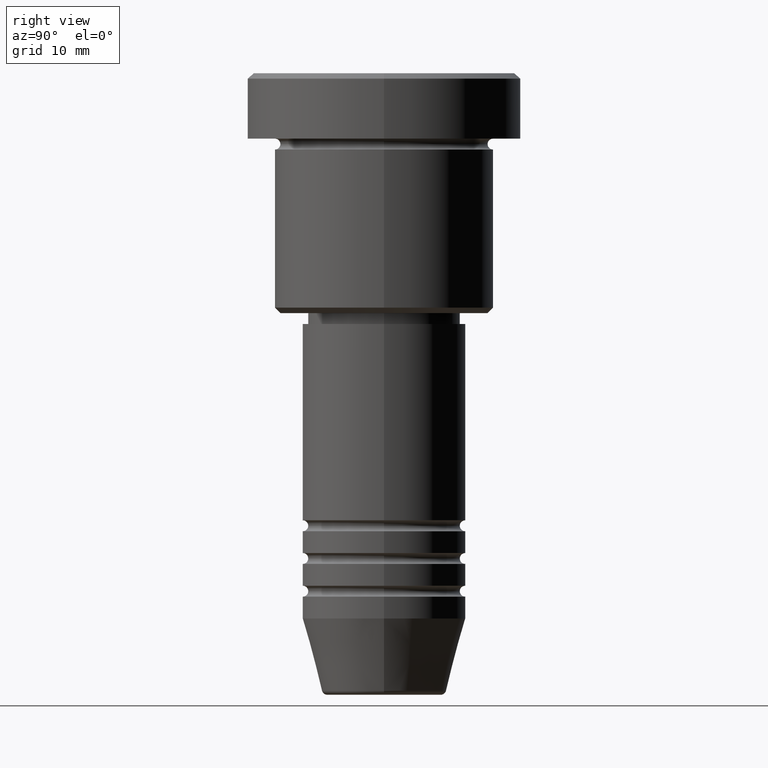
[diagram: clean part render]
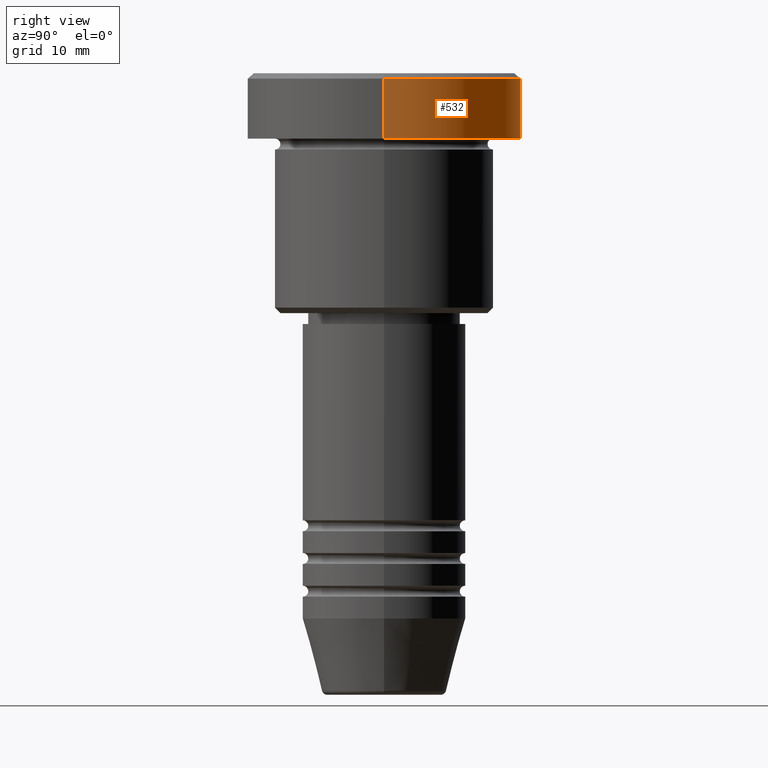
[diagram: same view with one face highlighted and labeled with its STEP entity id]
A machine part, right view. The second image highlights one B-rep face of the part: STEP entity #532.
In plain terms, the highlighted cylindrical surface (partial cylindrical patch) has radius 12.5 mm, axis along (-0, -0, 1).
Its self-contained STEP definition (entity closure, byte-faithful):
#17 = ORIENTED_EDGE ( 'NONE', *, *, #357, .F. ) ;
#64 = FACE_OUTER_BOUND ( 'NONE', #980, .T. ) ;
#92 = DIRECTION ( 'NONE',  ( 1.000000000000000000, 0.000000000000000000, 0.000000000000000000 ) ) ;
#96 = ORIENTED_EDGE ( 'NONE', *, *, #454, .T. ) ;
#128 = CARTESIAN_POINT ( 'NONE',  ( 0.000000000000000000, 0.000000000000000000, 0.000000000000000000 ) ) ;
#135 = DIRECTION ( 'NONE',  ( 1.000000000000000000, 0.000000000000000000, 0.000000000000000000 ) ) ;
#145 = CIRCLE ( 'NONE', #465, 12.50000000000000000 ) ;
#152 = VERTEX_POINT ( 'NONE', #291 ) ;
#206 = AXIS2_PLACEMENT_3D ( 'NONE', #955, #759, #135 ) ;
#291 = CARTESIAN_POINT ( 'NONE',  ( 12.50000000000000000, 0.000000000000000000, -5.999999999999996447 ) ) ;
#303 = CARTESIAN_POINT ( 'NONE',  ( -12.50000000000000000, 1.530808498934191521E-15, -5.999999999999996447 ) ) ;
#336 = CARTESIAN_POINT ( 'NONE',  ( 12.50000000000000000, 0.000000000000000000, 0.000000000000000000 ) ) ;
#357 = EDGE_CURVE ( 'NONE', #152, #821, #1089, .T. ) ;
#402 = DIRECTION ( 'NONE',  ( -0.000000000000000000, -0.000000000000000000, 1.000000000000000000 ) ) ;
#454 = EDGE_CURVE ( 'NONE', #541, #671, #1070, .T. ) ;
#465 = AXIS2_PLACEMENT_3D ( 'NONE', #1098, #568, #92 ) ;
#475 = DIRECTION ( 'NONE',  ( 1.000000000000000000, 0.000000000000000000, 0.000000000000000000 ) ) ;
#524 = CIRCLE ( 'NONE', #206, 12.50000000000000000 ) ;
#532 = ADVANCED_FACE ( 'NONE', ( #64 ), #1040, .T. ) ;
#541 = VERTEX_POINT ( 'NONE', #303 ) ;
#561 = ORIENTED_EDGE ( 'NONE', *, *, #1044, .T. ) ;
#568 = DIRECTION ( 'NONE',  ( -0.000000000000000000, -0.000000000000000000, 1.000000000000000000 ) ) ;
#626 = CARTESIAN_POINT ( 'NONE',  ( 12.50000000000000000, 0.000000000000000000, -0.4999999999999917843 ) ) ;
#671 = VERTEX_POINT ( 'NONE', #739 ) ;
#700 = DIRECTION ( 'NONE',  ( -0.000000000000000000, -0.000000000000000000, 1.000000000000000000 ) ) ;
#730 = VECTOR ( 'NONE', #700, 1000.000000000000000 ) ;
#739 = CARTESIAN_POINT ( 'NONE',  ( -12.50000000000000000, 1.530808498934191521E-15, -0.4999999999999917843 ) ) ;
#759 = DIRECTION ( 'NONE',  ( 0.000000000000000000, 0.000000000000000000, -1.000000000000000000 ) ) ;
#789 = DIRECTION ( 'NONE',  ( -0.000000000000000000, -0.000000000000000000, 1.000000000000000000 ) ) ;
#821 = VERTEX_POINT ( 'NONE', #626 ) ;
#955 = CARTESIAN_POINT ( 'NONE',  ( 0.000000000000000000, 0.000000000000000000, -0.4999999999999917843 ) ) ;
#964 = ORIENTED_EDGE ( 'NONE', *, *, #998, .T. ) ;
#980 = EDGE_LOOP ( 'NONE', ( #561, #96, #964, #17 ) ) ;
#998 = EDGE_CURVE ( 'NONE', #671, #821, #524, .T. ) ;
#1040 = CYLINDRICAL_SURFACE ( 'NONE', #1084, 12.50000000000000000 ) ;
#1043 = VECTOR ( 'NONE', #789, 1000.000000000000000 ) ;
#1044 = EDGE_CURVE ( 'NONE', #152, #541, #145, .T. ) ;
#1070 = LINE ( 'NONE', #1154, #1043 ) ;
#1084 = AXIS2_PLACEMENT_3D ( 'NONE', #128, #402, #475 ) ;
#1089 = LINE ( 'NONE', #336, #730 ) ;
#1098 = CARTESIAN_POINT ( 'NONE',  ( 0.000000000000000000, 0.000000000000000000, -5.999999999999996447 ) ) ;
#1154 = CARTESIAN_POINT ( 'NONE',  ( -12.50000000000000000, 1.530808498934191521E-15, 0.000000000000000000 ) ) ;